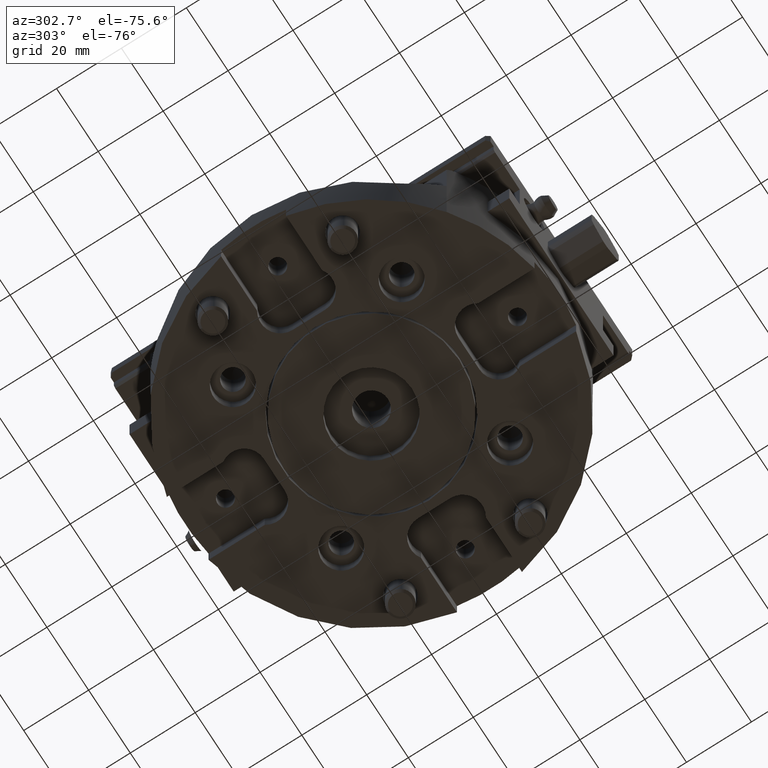
[diagram: clean part render]
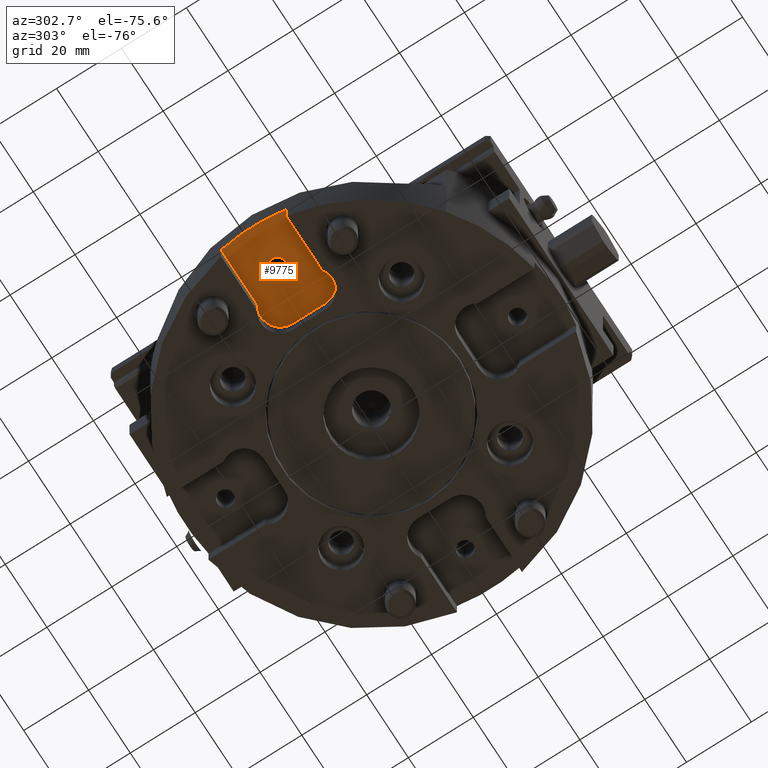
[diagram: same view with one face highlighted and labeled with its STEP entity id]
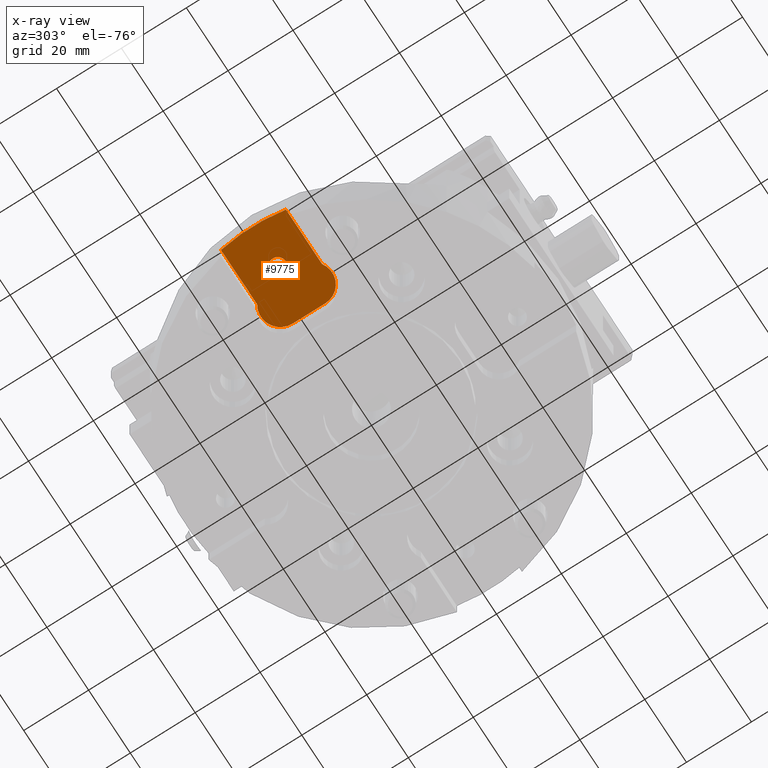
[diagram: x-ray of the same camera — body ghosted, the highlighted face saturated]
A machine part, auxiliary view. The second image highlights one B-rep face of the part: STEP entity #9775.
The next image is the same camera in x-ray: the body ghosted, the highlighted face saturated — about 0% of this face is hidden behind the body in this view.
In plain terms, the highlighted planar face has unit normal (0, 0, 1).
Its self-contained STEP definition (entity closure, byte-faithful):
#9570=CARTESIAN_POINT('',(-45.0,-2.458499999999994,6.5));
#9571=VERTEX_POINT('',#9570);
#9572=CARTESIAN_POINT('',(-45.0,5.574381E-015,6.5));
#9573=DIRECTION('',(0.0,0.0,-1.0));
#9574=DIRECTION('',(0.0,-1.0,0.0));
#9575=AXIS2_PLACEMENT_3D('',#9572,#9573,#9574);
#9576=CIRCLE('',#9575,2.4585);
#9577=EDGE_CURVE('',#9571,#9571,#9576,.T.);
#9590=CARTESIAN_POINT('',(-39.316624790355405,10.000000000000014,6.5));
#9591=VERTEX_POINT('',#9590);
#9592=CARTESIAN_POINT('',(-30.000000000000004,5.000000000000016,6.5));
#9593=VERTEX_POINT('',#9592);
#9594=CARTESIAN_POINT('',(-36.000000000000007,5.000000000000014,6.5));
#9595=DIRECTION('',(0.0,0.0,-1.0));
#9596=DIRECTION('',(-0.552770798392567,0.833333333333333,0.0));
#9597=AXIS2_PLACEMENT_3D('',#9594,#9595,#9596);
#9598=CIRCLE('',#9597,6.0);
#9599=EDGE_CURVE('',#9591,#9593,#9598,.T.);
#9632=CARTESIAN_POINT('',(-30.000000000000004,-4.999999999999986,6.5));
#9633=VERTEX_POINT('',#9632);
#9634=CARTESIAN_POINT('',(-30.000000000000004,5.000000000000016,6.5));
#9635=DIRECTION('',(0.0,-1.0,0.0));
#9636=VECTOR('',#9635,10.0);
#9637=LINE('',#9634,#9636);
#9638=EDGE_CURVE('',#9593,#9633,#9637,.T.);
#9663=CARTESIAN_POINT('',(-39.316624790355405,-9.999999999999986,6.5));
#9664=VERTEX_POINT('',#9663);
#9665=CARTESIAN_POINT('',(-36.000000000000007,-4.999999999999986,6.5));
#9666=DIRECTION('',(0.0,0.0,-1.0));
#9667=DIRECTION('',(1.0,0.0,0.0));
#9668=AXIS2_PLACEMENT_3D('',#9665,#9666,#9667);
#9669=CIRCLE('',#9668,6.000000000000001);
#9670=EDGE_CURVE('',#9633,#9664,#9669,.T.);
#9696=CARTESIAN_POINT('',(-56.623758264530622,-9.999999999999981,6.5));
#9697=VERTEX_POINT('',#9696);
#9698=CARTESIAN_POINT('',(-39.316624790355405,-9.999999999999986,6.5));
#9699=DIRECTION('',(-1.0,0.0,0.0));
#9700=VECTOR('',#9699,17.307133474175217);
#9701=LINE('',#9698,#9700);
#9702=EDGE_CURVE('',#9664,#9697,#9701,.T.);
#9727=CARTESIAN_POINT('',(-56.623758264530622,10.000000000000018,6.5));
#9728=VERTEX_POINT('',#9727);
#9729=CARTESIAN_POINT('',(-56.623758264530622,10.000000000000018,6.5));
#9730=DIRECTION('',(1.0,0.0,0.0));
#9731=VECTOR('',#9730,17.307133474175217);
#9732=LINE('',#9729,#9731);
#9733=EDGE_CURVE('',#9728,#9591,#9732,.T.);
#9753=CARTESIAN_POINT('',(-43.969553679907364,1.619718E-014,6.5));
#9754=DIRECTION('',(0.0,0.0,1.0));
#9755=DIRECTION('',(0.0,1.0,0.0));
#9756=AXIS2_PLACEMENT_3D('',#9753,#9754,#9755);
#9757=PLANE('',#9756);
#9758=ORIENTED_EDGE('',*,*,#9599,.T.);
#9759=ORIENTED_EDGE('',*,*,#9638,.T.);
#9760=ORIENTED_EDGE('',*,*,#9670,.T.);
#9761=ORIENTED_EDGE('',*,*,#9702,.T.);
#9762=CARTESIAN_POINT('',(-1.804112E-015,2.818926E-015,6.5));
#9763=DIRECTION('',(0.0,0.0,1.0));
#9764=DIRECTION('',(-0.608695652173913,-0.793403808299768,0.0));
#9765=AXIS2_PLACEMENT_3D('',#9762,#9763,#9764);
#9766=CIRCLE('',#9765,57.499999999999993);
#9767=EDGE_CURVE('',#9728,#9697,#9766,.T.);
#9768=ORIENTED_EDGE('',*,*,#9767,.F.);
#9769=ORIENTED_EDGE('',*,*,#9733,.T.);
#9770=EDGE_LOOP('',(#9758,#9759,#9760,#9761,#9768,#9769));
#9771=FACE_OUTER_BOUND('',#9770,.T.);
#9772=ORIENTED_EDGE('',*,*,#9577,.F.);
#9773=EDGE_LOOP('',(#9772));
#9774=FACE_BOUND('',#9773,.T.);
#9775=ADVANCED_FACE('',(#9771,#9774),#9757,.F.);